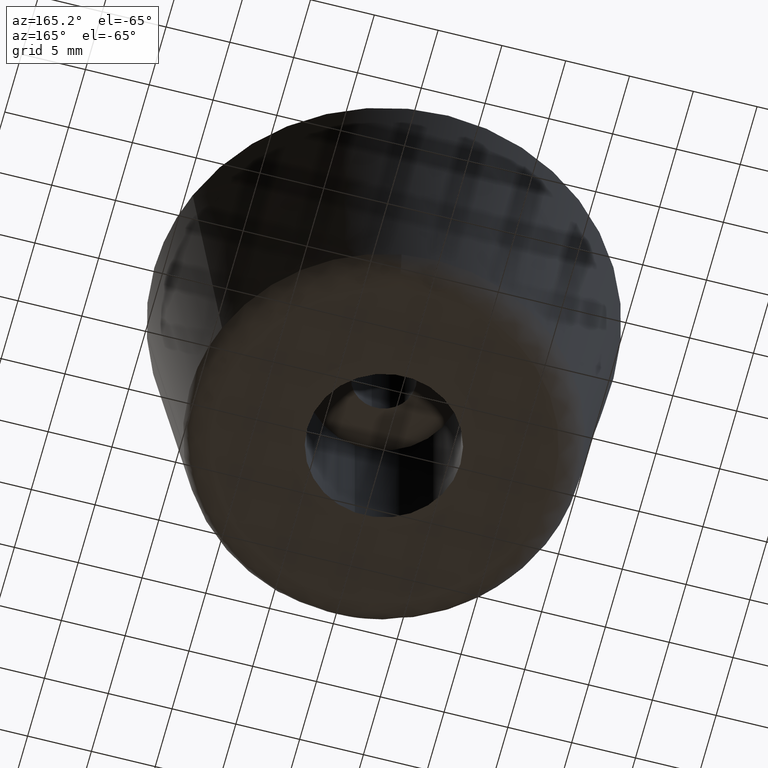
[diagram: clean part render]
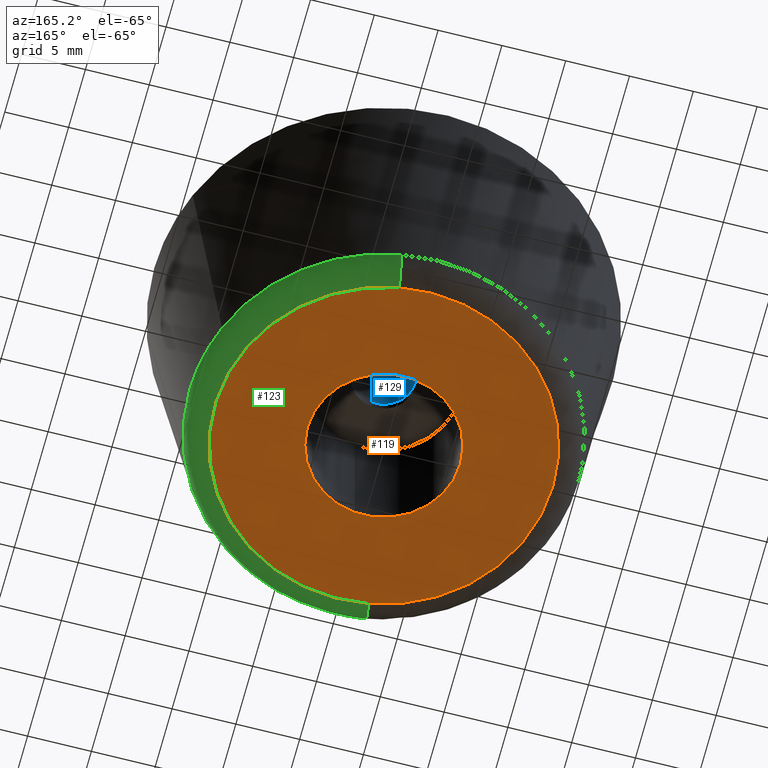
[diagram: same view with three faces highlighted in distinct colors, each labeled with its STEP entity id]
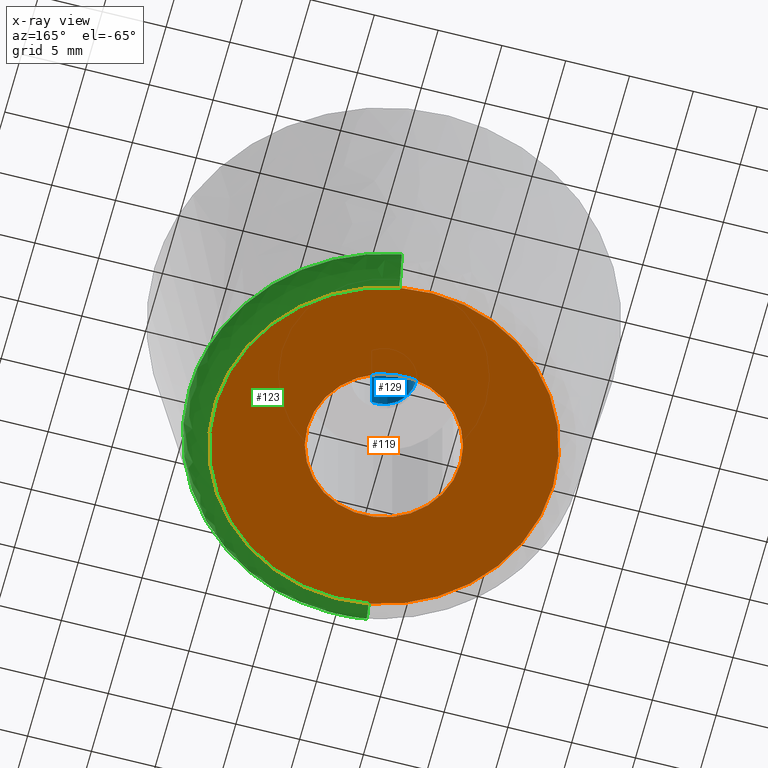
[diagram: x-ray of the same camera — body ghosted, the three highlighted faces saturated]
A machine part, auxiliary view with three faces highlighted in distinct colors.
The next image is the same camera in x-ray (body ghosted, the three faces saturated) — at least one of them is partly hidden behind the body in this view.
Their STEP definitions:

[orange] entity #119 — the highlighted planar face has unit normal (0, 0, 1).
#119=ADVANCED_FACE('',(#206,#207),#205,.F.);
#205=PLANE('',#379);
#206=FACE_OUTER_BOUND('',#380,.T.);
#207=FACE_BOUND('',#381,.T.);
#376=CARTESIAN_POINT('',(-1.72304834020E+001,-2.75483747903E+001,0.00000000000E+000));
#377=DIRECTION('',(0.00000000000E+000,0.00000000000E+000,1.00000000000E+000));
#378=DIRECTION('',(1.00000000000E+000,0.00000000000E+000,0.00000000000E+000));
#379=AXIS2_PLACEMENT_3D('',#376,#377,#378);
#380=EDGE_LOOP('',(#538,#539,#540));
#381=EDGE_LOOP('',(#541,#542,#543));
#538=ORIENTED_EDGE('',*,*,#642,.T.);
#539=ORIENTED_EDGE('',*,*,#643,.T.);
#540=ORIENTED_EDGE('',*,*,#644,.T.);
#541=ORIENTED_EDGE('',*,*,#645,.F.);
#542=ORIENTED_EDGE('',*,*,#646,.F.);
#543=ORIENTED_EDGE('',*,*,#647,.F.);
#642=EDGE_CURVE('',#842,#843,#844,.T.);
#643=EDGE_CURVE('',#843,#850,#851,.T.);
#644=EDGE_CURVE('',#850,#842,#857,.T.);
#645=EDGE_CURVE('',#863,#864,#865,.T.);
#646=EDGE_CURVE('',#871,#863,#872,.T.);
#647=EDGE_CURVE('',#864,#871,#878,.T.);
#842=VERTEX_POINT('',#1192);
#843=VERTEX_POINT('',#1193);
#844=CIRCLE('',#1197,1.32542180008E+001);
#850=VERTEX_POINT('',#1198);
#851=CIRCLE('',#1202,1.32542180008E+001);
#857=CIRCLE('',#1206,1.32542180008E+001);
#863=VERTEX_POINT('',#1207);
#864=VERTEX_POINT('',#1208);
#865=CIRCLE('',#1212,6.00000000000E+000);
#871=VERTEX_POINT('',#1213);
#872=CIRCLE('',#1217,6.00000000000E+000);
#878=CIRCLE('',#1221,6.00000000000E+000);
#1192=CARTESIAN_POINT('',(-1.32542180016E+001,-8.43769498715E-015,9.17483551141E-016));
#1193=CARTESIAN_POINT('',(2.24671138104E+000,1.30624110629E+001,3.80980841773E-016));
#1194=CARTESIAN_POINT('',(-7.79961872865E-010,-1.14004805596E-010,4.58741775570E-016));
#1195=DIRECTION('',(-3.46110027422E-017,-8.56490000799E-033,-1.00000000000E+000));
#1196=DIRECTION('',(-1.00000000000E+000,8.60114757195E-012,3.46110027422E-017));
#1197=AXIS2_PLACEMENT_3D('',#1194,#1195,#1196);
#1198=CARTESIAN_POINT('',(-2.24657101455E+000,-1.30624352054E+001,5.36497851088E-016));
#1199=CARTESIAN_POINT('',(-7.79961872865E-010,-1.14004805596E-010,4.58741775570E-016));
#1200=DIRECTION('',(-3.46110027422E-017,-8.56490000799E-033,-1.00000000000E+000));
#1201=DIRECTION('',(-1.00000000000E+000,8.60114757195E-012,3.46110027422E-017));
#1202=AXIS2_PLACEMENT_3D('',#1199,#1200,#1201);
#1203=CARTESIAN_POINT('',(-7.79961872865E-010,-1.14004805596E-010,4.58741775570E-016));
#1204=DIRECTION('',(-3.46110027422E-017,-8.56490000799E-033,-1.00000000000E+000));
#1205=DIRECTION('',(-1.00000000000E+000,8.60114757195E-012,3.46110027422E-017));
#1206=AXIS2_PLACEMENT_3D('',#1203,#1204,#1205);
#1207=CARTESIAN_POINT('',(7.08203229114E-001,-5.95805741717E+000,9.65202983685E-016));
#1208=CARTESIAN_POINT('',(-6.00000000000E+000,-3.55271367880E-015,8.78894315863E-015));
#1209=CARTESIAN_POINT('',(8.88178419700E-016,4.44089209850E-016,7.23951401543E-016));
#1210=DIRECTION('',(-1.34416529285E-015,-2.00265573064E-016,-1.00000000000E+000));
#1211=DIRECTION('',(-1.00000000000E+000,-2.77555756156E-016,1.34416529285E-015));
#1212=AXIS2_PLACEMENT_3D('',#1209,#1210,#1211);
#1213=CARTESIAN_POINT('',(-7.09235167212E-001,5.95793466543E+000,4.84111497723E-016));
#1214=CARTESIAN_POINT('',(8.88178419700E-016,4.44089209850E-016,7.23951401543E-016));
#1215=DIRECTION('',(-1.34416529285E-015,-2.00265573064E-016,-1.00000000000E+000));
#1216=DIRECTION('',(-1.00000000000E+000,-2.77555756156E-016,1.34416529285E-015));
#1217=AXIS2_PLACEMENT_3D('',#1214,#1215,#1216);
#1218=CARTESIAN_POINT('',(8.88178419700E-016,4.44089209850E-016,7.23951401543E-016));
#1219=DIRECTION('',(-1.34416529285E-015,-2.00265573064E-016,-1.00000000000E+000));
#1220=DIRECTION('',(-1.00000000000E+000,-2.77555756156E-016,1.34416529285E-015));
#1221=AXIS2_PLACEMENT_3D('',#1218,#1219,#1220);

[blue] entity #129 — the highlighted cylindrical surface (edge-blend (fillet) strip) has radius 2.5 mm, axis along (0, 0, 1).
#129=ADVANCED_FACE('',(#309),#308,.F.);
#308=CYLINDRICAL_SURFACE('',#486,2.50000000000E+000);
#309=FACE_OUTER_BOUND('',#487,.T.);
#483=CARTESIAN_POINT('',(3.64808859685E-013,4.33369249438E-014,2.22300000000E+001));
#484=DIRECTION('',(7.54302939175E-014,8.96603383564E-015,1.00000000000E+000));
#485=DIRECTION('',(1.18034234657E-001,-9.93009526364E-001,-1.11576486434E-026));
#486=AXIS2_PLACEMENT_3D('',#483,#484,#485);
#487=EDGE_LOOP('',(#602,#603,#604,#605,#606,#607));
#602=ORIENTED_EDGE('',*,*,#639,.F.);
#603=ORIENTED_EDGE('',*,*,#641,.F.);
#604=ORIENTED_EDGE('',*,*,#674,.F.);
#605=ORIENTED_EDGE('',*,*,#651,.T.);
#606=ORIENTED_EDGE('',*,*,#653,.T.);
#607=ORIENTED_EDGE('',*,*,#675,.T.);
#639=EDGE_CURVE('',#821,#822,#823,.T.);
#641=EDGE_CURVE('',#829,#821,#836,.T.);
#651=EDGE_CURVE('',#905,#906,#907,.T.);
#653=EDGE_CURVE('',#906,#913,#920,.T.);
#674=EDGE_CURVE('',#905,#829,#1060,.T.);
#675=EDGE_CURVE('',#913,#822,#1066,.T.);
#821=VERTEX_POINT('',#1177);
#822=VERTEX_POINT('',#1178);
#823=CIRCLE('',#1182,2.50000000000E+000);
#829=VERTEX_POINT('',#1183);
#836=CIRCLE('',#1191,2.50000000000E+000);
#905=VERTEX_POINT('',#1237);
#906=VERTEX_POINT('',#1238);
#907=CIRCLE('',#1242,2.50000000000E+000);
#913=VERTEX_POINT('',#1243);
#920=CIRCLE('',#1251,2.50000000000E+000);
#1060=(BOUNDED_CURVE() B_SPLINE_CURVE(1,(#1338,#1339),.UNSPECIFIED.,.F.,.F.) B_SPLINE_CURVE_WITH_KNOTS((2,2),(8.33333343261E-002,9.16666667006E-001),.UNSPECIFIED.) CURVE() GEOMETRIC_REPRESENTATION_ITEM() RATIONAL_B_SPLINE_CURVE((1.00000000000E+000,1.00000000000E+000)) REPRESENTATION_ITEM('') );
#1066=(BOUNDED_CURVE() B_SPLINE_CURVE(1,(#1340,#1341),.UNSPECIFIED.,.F.,.F.) B_SPLINE_CURVE_WITH_KNOTS((2,2),(8.33333333333E-002,9.16666666667E-001),.UNSPECIFIED.) CURVE() GEOMETRIC_REPRESENTATION_ITEM() RATIONAL_B_SPLINE_CURVE((7.50000000000E-001,7.50000000000E-001)) REPRESENTATION_ITEM('') );
#1177=CARTESIAN_POINT('',(-2.50000000000E+000,6.66133814775E-016,2.20000000000E+001));
#1178=CARTESIAN_POINT('',(-2.95514653005E-001,2.48247277726E+000,2.20000000000E+001));
#1179=CARTESIAN_POINT('',(1.61426427780E-013,7.34967642302E-014,2.20000000000E+001));
#1180=DIRECTION('',(3.00983386588E-014,6.43981371914E-015,-1.00000000000E+000));
#1181=DIRECTION('',(-1.00000000000E+000,-2.87686541256E-014,-3.00983386588E-014));
#1182=AXIS2_PLACEMENT_3D('',#1179,#1180,#1181);
#1183=CARTESIAN_POINT('',(2.95084678798E-001,-2.48252392382E+000,2.20000000000E+001));
#1188=CARTESIAN_POINT('',(1.61426427780E-013,7.34967642302E-014,2.20000000000E+001));
#1189=DIRECTION('',(3.00983386588E-014,6.43981371914E-015,-1.00000000000E+000));
#1190=DIRECTION('',(-1.00000000000E+000,-2.87686541256E-014,-3.00983386588E-014));
#1191=AXIS2_PLACEMENT_3D('',#1188,#1189,#1190);
#1237=CARTESIAN_POINT('',(2.95084678797E-001,-2.48252392382E+000,1.28000000000E+001));
#1238=CARTESIAN_POINT('',(-2.50000000000E+000,0.00000000000E+000,1.28000000000E+001));
#1239=CARTESIAN_POINT('',(1.56541446472E-013,7.14983627859E-014,1.28000000000E+001));
#1240=DIRECTION('',(-4.38185016984E-014,-8.07065917059E-015,-1.00000000000E+000));
#1241=DIRECTION('',(-1.00000000000E+000,-2.82274204011E-014,4.38185016984E-014));
#1242=AXIS2_PLACEMENT_3D('',#1239,#1240,#1241);
#1243=CARTESIAN_POINT('',(-2.95514653006E-001,2.48247277726E+000,1.28000000000E+001));
#1248=CARTESIAN_POINT('',(1.56541446472E-013,7.14983627859E-014,1.28000000000E+001));
#1249=DIRECTION('',(-4.38185016984E-014,-8.07065917059E-015,-1.00000000000E+000));
#1250=DIRECTION('',(-1.00000000000E+000,-2.82274204011E-014,4.38185016984E-014));
#1251=AXIS2_PLACEMENT_3D('',#1248,#1249,#1250);
#1338=CARTESIAN_POINT('',(2.95085586642E-001,-2.48252381591E+000,1.28000000110E+001));
#1339=CARTESIAN_POINT('',(2.95085586643E-001,-2.48252381591E+000,2.20000000037E+001));
#1340=CARTESIAN_POINT('',(-2.95085586643E-001,2.48252381591E+000,1.28000000000E+001));
#1341=CARTESIAN_POINT('',(-2.95085586642E-001,2.48252381591E+000,2.20000000000E+001));

[green] entity #123 — the highlighted face is a freeform B-spline surface patch.
#123=ADVANCED_FACE('',(#249),#248,.T.);
#248=( BOUNDED_SURFACE() B_SPLINE_SURFACE( 2,2,((#420,#421,#422,#423,#424),(#425,#426,#427,#428,#429),(#430,#431,#432,#433,#434),(#435,#436,#437,#438,#439),(#440,#441,#442,#443,#444)), .UNSPECIFIED.,.F.,.F.,.F.) B_SPLINE_SURFACE_WITH_KNOTS((3,2,3),(3,2,3),(0.00000000000E+000,5.00000000000E-001,1.00000000000E+000),(0.00000000000E+000,5.00000000000E-001,1.00000000000E+000), .UNSPECIFIED. ) GEOMETRIC_REPRESENTATION_ITEM() RATIONAL_B_SPLINE_SURFACE(((1.00000000000E+000,7.53363624022E-001,1.00000000000E+000,7.53363624022E-001,1.00000000000E+000),(7.07106781187E-001,5.32708527245E-001,7.07106781187E-001,5.32708527245E-001,7.07106781187E-001),(1.00000000000E+000,7.53363624022E-001,1.00000000000E+000,7.53363624022E-001,1.00000000000E+000),(7.07106781187E-001,5.32708527245E-001,7.07106781187E-001,5.32708527245E-001,7.07106781187E-001),(1.00000000000E+000,7.53363624022E-001,1.00000000000E+000,7.53363624022E-001,1.00000000000E+000))) REPRESENTATION_ITEM('') SURFACE() );
#249=FACE_OUTER_BOUND('',#445,.T.);
#420=CARTESIAN_POINT('',(2.58245959645E+000,1.50154216941E+001,1.72977300000E+000));
#421=CARTESIAN_POINT('',(2.54247850034E+000,1.47829560948E+001,0.00000000000E+000));
#422=CARTESIAN_POINT('',(2.24657101438E+000,1.30624352044E+001,0.00000000000E+000));
#423=CARTESIAN_POINT('',(1.95066352841E+000,1.13419143140E+001,0.00000000000E+000));
#424=CARTESIAN_POINT('',(1.91068243231E+000,1.11094487147E+001,1.72977300000E+000));
#425=CARTESIAN_POINT('',(1.75978812905E+001,1.24329620976E+001,1.72977300000E+000));
#426=CARTESIAN_POINT('',(1.73254345951E+001,1.22404775944E+001,-2.94737624495E-016));
#427=CARTESIAN_POINT('',(1.53090062188E+001,1.08158641900E+001,-2.22044604925E-016));
#428=CARTESIAN_POINT('',(1.32925778424E+001,9.39125078561E+000,-2.94737624495E-016));
#429=CARTESIAN_POINT('',(1.30201311470E+001,9.19876628240E+000,1.72977300000E+000));
#430=CARTESIAN_POINT('',(1.50154216941E+001,-2.58245959645E+000,1.72977300000E+000));
#431=CARTESIAN_POINT('',(1.47829560948E+001,-2.54247850034E+000,-5.89475248989E-016));
#432=CARTESIAN_POINT('',(1.30624352044E+001,-2.24657101438E+000,-4.44089209850E-016));
#433=CARTESIAN_POINT('',(1.13419143140E+001,-1.95066352841E+000,-2.94737624495E-016));
#434=CARTESIAN_POINT('',(1.11094487147E+001,-1.91068243231E+000,1.72977300000E+000));
#435=CARTESIAN_POINT('',(1.24329620976E+001,-1.75978812905E+001,1.72977300000E+000));
#436=CARTESIAN_POINT('',(1.22404775944E+001,-1.73254345951E+001,-7.11559570397E-016));
#437=CARTESIAN_POINT('',(1.08158641900E+001,-1.53090062188E+001,-6.28036983474E-016));
#438=CARTESIAN_POINT('',(9.39125078561E+000,-1.32925778424E+001,-7.11559570397E-016));
#439=CARTESIAN_POINT('',(9.19876628240E+000,-1.30201311470E+001,1.72977300000E+000));
#440=CARTESIAN_POINT('',(-2.58245959645E+000,-1.50154216941E+001,1.72977300000E+000));
#441=CARTESIAN_POINT('',(-2.54247850034E+000,-1.47829560948E+001,-5.89475248989E-016));
#442=CARTESIAN_POINT('',(-2.24657101438E+000,-1.30624352044E+001,-4.44089209850E-016));
#443=CARTESIAN_POINT('',(-1.95066352841E+000,-1.13419143140E+001,-2.94737624495E-016));
#444=CARTESIAN_POINT('',(-1.91068243231E+000,-1.11094487147E+001,1.72977300000E+000));
#445=EDGE_LOOP('',(#564,#565,#566,#567,#568,#569,#570));
#564=ORIENTED_EDGE('',*,*,#666,.T.);
#565=ORIENTED_EDGE('',*,*,#667,.T.);
#566=ORIENTED_EDGE('',*,*,#668,.T.);
#567=ORIENTED_EDGE('',*,*,#669,.T.);
#568=ORIENTED_EDGE('',*,*,#660,.T.);
#569=ORIENTED_EDGE('',*,*,#643,.F.);
#570=ORIENTED_EDGE('',*,*,#665,.F.);
#643=EDGE_CURVE('',#843,#850,#851,.T.);
#660=EDGE_CURVE('',#968,#850,#969,.T.);
#665=EDGE_CURVE('',#996,#843,#1003,.T.);
#666=EDGE_CURVE('',#996,#1009,#1010,.T.);
#667=EDGE_CURVE('',#1009,#1016,#1017,.T.);
#668=EDGE_CURVE('',#1016,#1023,#1024,.T.);
#669=EDGE_CURVE('',#1023,#968,#1030,.T.);
#843=VERTEX_POINT('',#1193);
#850=VERTEX_POINT('',#1198);
#851=CIRCLE('',#1202,1.32542180008E+001);
#968=VERTEX_POINT('',#1282);
#969=(BOUNDED_CURVE() B_SPLINE_CURVE(2,(#1283,#1284,#1285),.UNSPECIFIED.,.F.,.F.) B_SPLINE_CURVE_WITH_KNOTS((3,3),(5.81146286553E-007,5.00000000000E-001),.UNSPECIFIED.) CURVE() GEOMETRIC_REPRESENTATION_ITEM() RATIONAL_B_SPLINE_CURVE((1.00000000000E+000,7.53363624022E-001,1.00000000000E+000)) REPRESENTATION_ITEM('') );
#996=VERTEX_POINT('',#1301);
#1003=(BOUNDED_CURVE() B_SPLINE_CURVE(3,(#1306,#1307,#1308,#1309,#1310),.UNSPECIFIED.,.F.,.F.) B_SPLINE_CURVE_WITH_KNOTS((4,1,4),(0.00000000000E+000,2.50000282486E-001,5.00000501322E-001),.UNSPECIFIED.) CURVE() GEOMETRIC_REPRESENTATION_ITEM() RATIONAL_B_SPLINE_CURVE((1.00000000000E+000,1.00000000000E+000,1.00000000000E+000,1.00000000000E+000,1.00000000000E+000)) REPRESENTATION_ITEM('') );
#1009=VERTEX_POINT('',#1311);
#1010=CIRCLE('',#1315,1.52358781782E+001);
#1016=VERTEX_POINT('',#1316);
#1017=CIRCLE('',#1320,1.52358781782E+001);
#1023=VERTEX_POINT('',#1321);
#1024=CIRCLE('',#1325,1.52358776726E+001);
#1030=CIRCLE('',#1329,1.52358771671E+001);
#1193=CARTESIAN_POINT('',(2.24671138104E+000,1.30624110629E+001,3.80980841773E-016));
#1198=CARTESIAN_POINT('',(-2.24657101455E+000,-1.30624352054E+001,5.36497851088E-016));
#1199=CARTESIAN_POINT('',(-7.79961872865E-010,-1.14004805596E-010,4.58741775570E-016));
#1200=DIRECTION('',(-3.46110027422E-017,-8.56490000799E-033,-1.00000000000E+000));
#1201=DIRECTION('',(-1.00000000000E+000,8.60114757195E-012,3.46110027422E-017));
#1202=AXIS2_PLACEMENT_3D('',#1199,#1200,#1201);
#1282=CARTESIAN_POINT('',(-2.58245949367E+000,-1.50154210965E+001,1.72977001460E+000));
#1283=CARTESIAN_POINT('',(-2.58245959645E+000,-1.50154216941E+001,1.72977300000E+000));
#1284=CARTESIAN_POINT('',(-2.54247850034E+000,-1.47829560948E+001,-8.84212873484E-016));
#1285=CARTESIAN_POINT('',(-2.24657101438E+000,-1.30624352044E+001,-4.44089209850E-016));
#1301=CARTESIAN_POINT('',(2.58245957439E+000,1.50154215658E+001,1.72977298283E+000));
#1306=CARTESIAN_POINT('',(2.58245959645E+000,1.50154216941E+001,1.72977300000E+000));
#1307=CARTESIAN_POINT('',(2.57210457059E+000,1.49552135576E+001,1.25897134938E+000));
#1308=CARTESIAN_POINT('',(2.48942221280E+000,1.44744662612E+001,3.58598198605E-001));
#1309=CARTESIAN_POINT('',(2.32703809942E+000,1.35303020458E+001,-3.08037406609E-003));
#1310=CARTESIAN_POINT('',(2.24657056735E+000,1.30624326052E+001,1.73886025493E-012));
#1311=CARTESIAN_POINT('',(1.41672990901E+001,5.60532024489E+000,1.72977299855E+000));
#1312=CARTESIAN_POINT('',(-1.78210830981E-007,-2.28967547145E-008,1.72977297932E+000));
#1313=DIRECTION('',(1.35714084369E-009,-6.01767717369E-017,-1.00000000000E+000));
#1314=DIRECTION('',(-1.69498582385E-001,-9.85530431072E-001,-2.30033389798E-010));
#1315=AXIS2_PLACEMENT_3D('',#1312,#1313,#1314);
#1316=CARTESIAN_POINT('',(1.52358780000E+001,0.00000000000E+000,1.72977300000E+000));
#1317=CARTESIAN_POINT('',(-1.78210830981E-007,-2.28967547145E-008,1.72977297932E+000));
#1318=DIRECTION('',(1.35714084369E-009,-6.01767717369E-017,-1.00000000000E+000));
#1319=DIRECTION('',(-1.69498582385E-001,-9.85530431072E-001,-2.30033389798E-010));
#1320=AXIS2_PLACEMENT_3D('',#1317,#1318,#1319);
#1321=CARTESIAN_POINT('',(1.19538547567E+000,-1.51889111039E+001,1.72977023883E+000));
#1322=CARTESIAN_POINT('',(3.27404926281E-007,7.50390851678E-008,1.72977161942E+000));
#1323=DIRECTION('',(9.06140297511E-008,9.80256554320E-008,-1.00000000000E+000));
#1324=DIRECTION('',(-1.00000000000E+000,4.92515671104E-009,-9.06140292684E-008));
#1325=AXIS2_PLACEMENT_3D('',#1322,#1323,#1324);
#1326=CARTESIAN_POINT('',(-1.25182690880E-007,-4.67620031586E-007,1.72976962314E+000));
#1327=DIRECTION('',(5.77000461038E-008,-3.59946252083E-008,-1.00000000000E+000));
#1328=DIRECTION('',(-7.84586005610E-002,9.96917372703E-001,-4.04107320638E-008));
#1329=AXIS2_PLACEMENT_3D('',#1326,#1327,#1328);